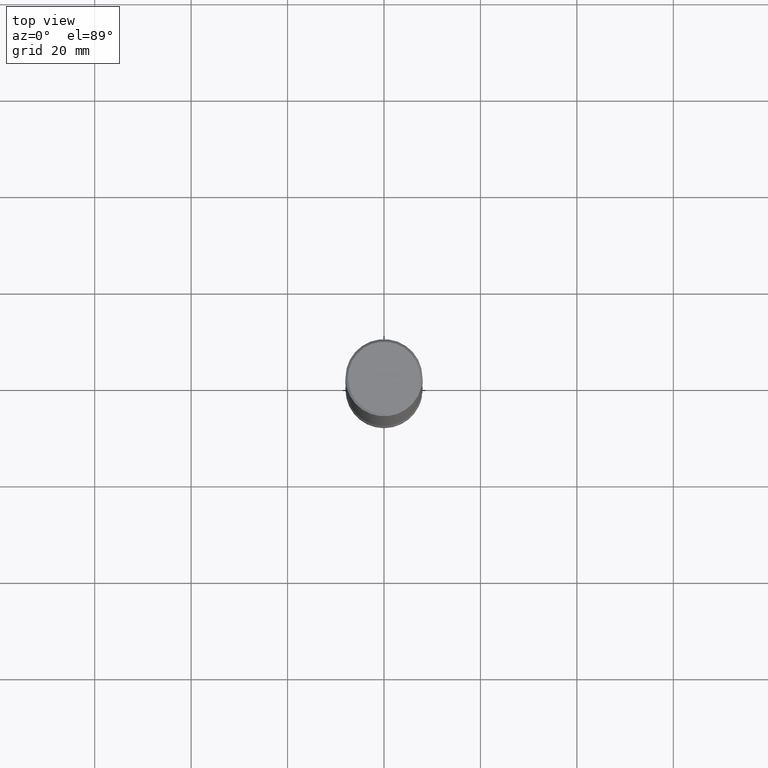
[diagram: clean part render]
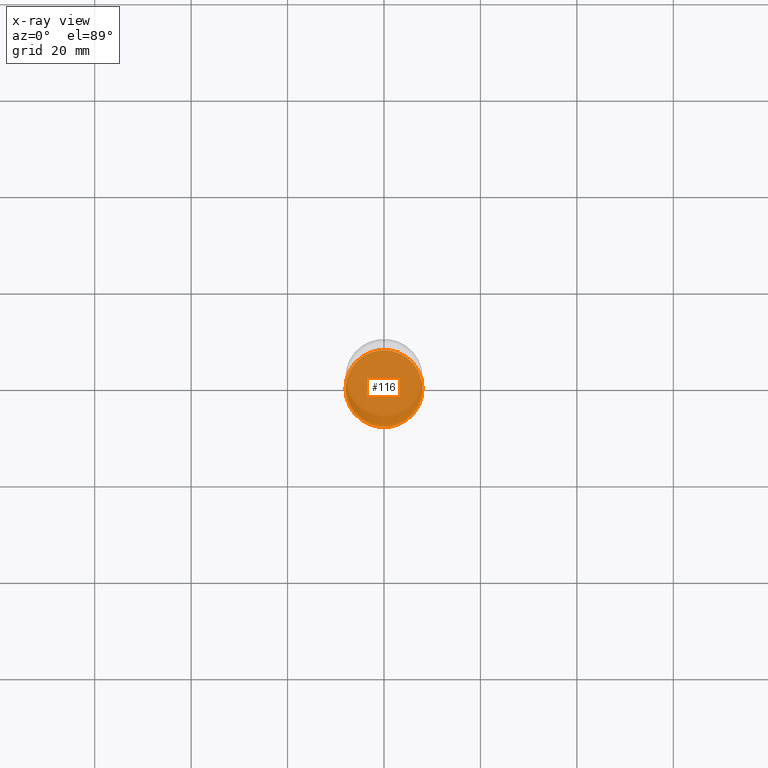
[diagram: x-ray — body ghosted, one internal face saturated and labeled with its STEP entity id]
A machine part, top view, then the same camera in x-ray: the body is ghosted and one INTERNAL B-rep face — a face not visible from any outside direction — is saturated and labeled: STEP entity #116.
In plain terms, the highlighted planar face has unit normal (0, -0, -1).
Its self-contained STEP definition (entity closure, byte-faithful):
#27 = DIRECTION ( 'NONE',  ( -1.000000000000000000, 6.982962677686265922E-15, -4.876176775795935793E-29 ) ) ;
#31 = PLANE ( 'NONE',  #230 ) ;
#41 = DIRECTION ( 'NONE',  ( 2.445468806185136597E-29, -3.491481338843145583E-15, -1.000000000000000000 ) ) ;
#86 = DIRECTION ( 'NONE',  ( -1.000000000000000000, 6.982962677686268288E-15, 0.000000000000000000 ) ) ;
#89 = CIRCLE ( 'NONE', #370, 0.3144499999999990081 ) ;
#116 = ADVANCED_FACE ( 'NONE', ( #205 ), #31, .T. ) ;
#121 = DIRECTION ( 'NONE',  ( -1.000000000000000000, 6.982962677686268288E-15, 0.000000000000000000 ) ) ;
#128 = DIRECTION ( 'NONE',  ( 2.445468806185136597E-29, -3.491481338843145583E-15, -1.000000000000000000 ) ) ;
#138 = EDGE_LOOP ( 'NONE', ( #547, #457 ) ) ;
#205 = FACE_OUTER_BOUND ( 'NONE', #138, .T. ) ;
#230 = AXIS2_PLACEMENT_3D ( 'NONE', #319, #420, #27 ) ;
#295 = CIRCLE ( 'NONE', #476, 0.3144499999999990081 ) ;
#319 = CARTESIAN_POINT ( 'NONE',  ( 2.195792613998564404E-15, 0.3144499999999811335, -5.118100000000000094 ) ) ;
#331 = VERTEX_POINT ( 'NONE', #387 ) ;
#357 = EDGE_CURVE ( 'NONE', #458, #331, #89, .T. ) ;
#370 = AXIS2_PLACEMENT_3D ( 'NONE', #484, #128, #121 ) ;
#387 = CARTESIAN_POINT ( 'NONE',  ( 0.3144499999999990081, -2.006618451223367600E-14, -5.118099999999999206 ) ) ;
#418 = EDGE_CURVE ( 'NONE', #331, #458, #295, .T. ) ;
#420 = DIRECTION ( 'NONE',  ( 2.438088387897960049E-29, -3.491481338843145188E-15, -1.000000000000000000 ) ) ;
#434 = CARTESIAN_POINT ( 'NONE',  ( 1.251615389693614574E-28, -1.786975064033310244E-14, -5.118099999999999206 ) ) ;
#457 = ORIENTED_EDGE ( 'NONE', *, *, #357, .T. ) ;
#458 = VERTEX_POINT ( 'NONE', #531 ) ;
#476 = AXIS2_PLACEMENT_3D ( 'NONE', #434, #41, #86 ) ;
#484 = CARTESIAN_POINT ( 'NONE',  ( 1.251615389693614574E-28, -1.786975064033310244E-14, -5.118099999999999206 ) ) ;
#531 = CARTESIAN_POINT ( 'NONE',  ( -0.3144499999999990081, -1.563350274172963672E-14, -5.118099999999999206 ) ) ;
#547 = ORIENTED_EDGE ( 'NONE', *, *, #418, .T. ) ;